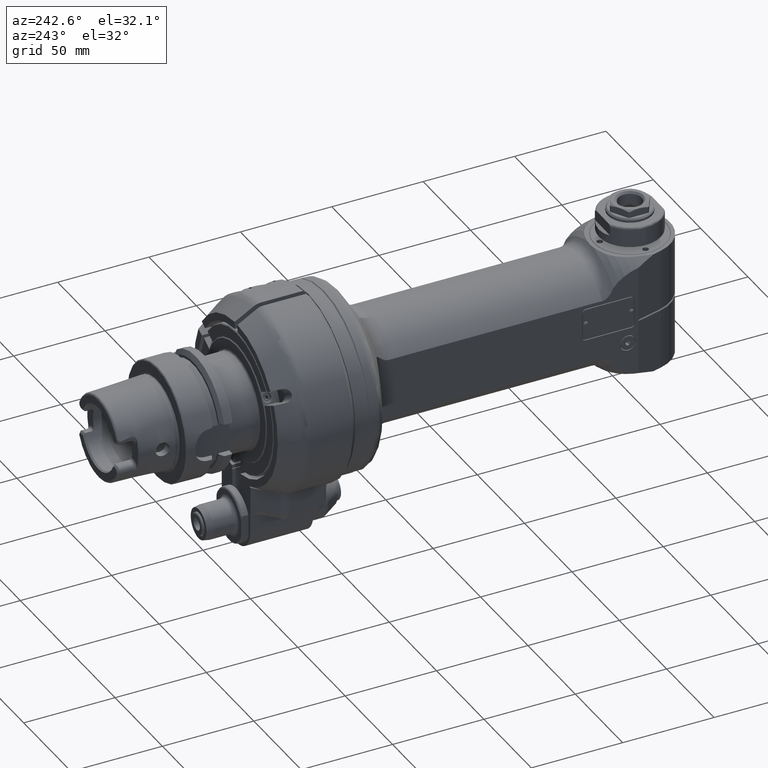
[diagram: clean part render]
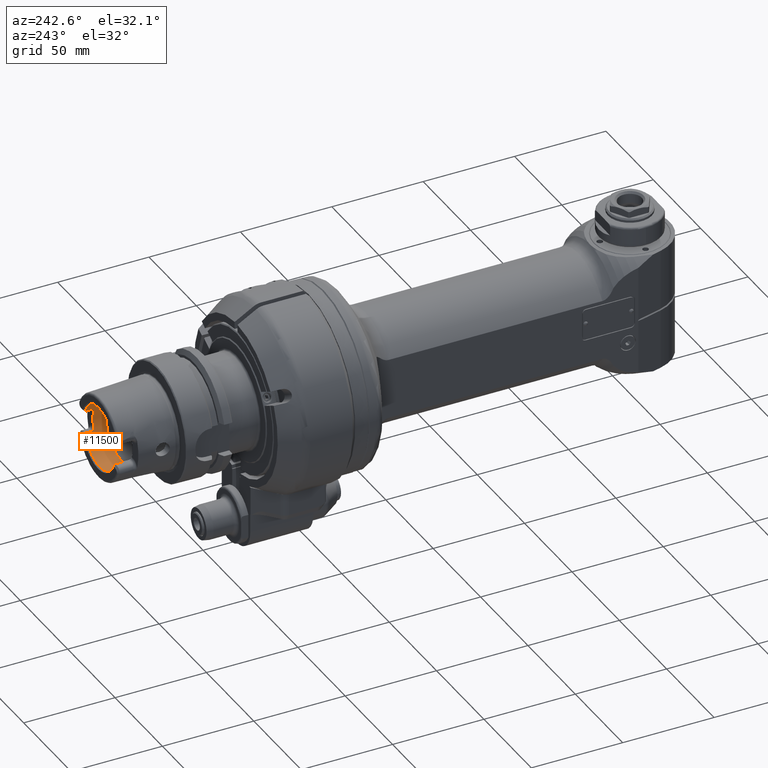
[diagram: same view with one face highlighted and labeled with its STEP entity id]
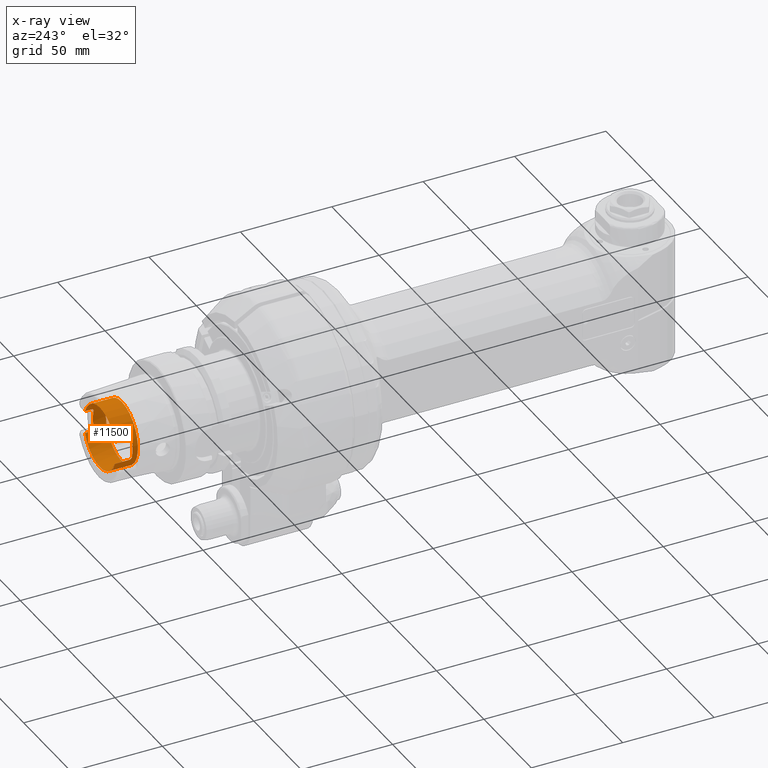
[diagram: x-ray of the same camera — body ghosted, the highlighted face saturated]
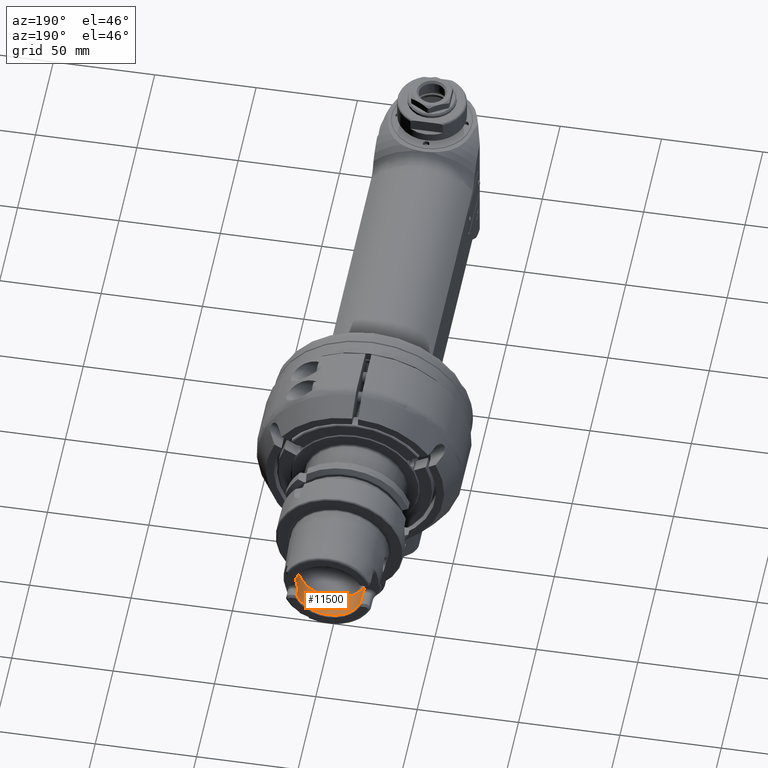
[diagram: same view with one face highlighted and labeled with its STEP entity id]
A machine part, auxiliary view. The second image highlights one B-rep face of the part: STEP entity #11500.
The next image is the same camera in x-ray: the body ghosted, the highlighted face saturated — about 0% of this face is hidden behind the body in this view.
A second angle (auxiliary view) of the same face is appended — the face is thin or edge-on in the first view.
In plain terms, the highlighted cylindrical surface (bore or boss wall) has radius 17 mm, axis along (0, 1, 0).
Its self-contained STEP definition (entity closure, byte-faithful):
#982=FACE_OUTER_BOUND('',#1634,.T.);
#1634=EDGE_LOOP('',(#8544,#8545,#8546,#8547,#8548,#8549,#8550,#8551,#8552,
#8553,#8554,#8555,#8556,#8557,#8558,#8559,#8560));
#2329=CIRCLE('',#12368,17.);
#2340=CIRCLE('',#12387,17.);
#2347=CIRCLE('',#12406,17.);
#2348=CIRCLE('',#12407,17.);
#2349=CIRCLE('',#12408,17.);
#2350=CIRCLE('',#12409,17.);
#2351=CIRCLE('',#12410,17.);
#2784=B_SPLINE_CURVE_WITH_KNOTS('',3,(#18374,#18375,#18376,#18377,#18378,
#18379,#18380,#18381,#18382,#18383),.UNSPECIFIED.,.F.,.F.,(4,2,2,2,4),(0.,
0.056497899521895,0.11299579904379,0.172665941565038,0.232336084086285),
 .UNSPECIFIED.);
#2785=B_SPLINE_CURVE_WITH_KNOTS('',3,(#18395,#18396,#18397,#18398,#18399,
#18400,#18401,#18402,#18403,#18404),.UNSPECIFIED.,.F.,.F.,(4,2,2,2,4),(-0.694241828658425,
-0.634571686137177,-0.57490154361593,-0.518403644094035,-0.46190574457214),
 .UNSPECIFIED.);
#2786=B_SPLINE_CURVE_WITH_KNOTS('',3,(#18406,#18407,#18408,#18409,#18410,
#18411,#18412,#18413,#18414,#18415),.UNSPECIFIED.,.F.,.F.,(4,2,2,2,4),(-0.46190574457214,
-0.405407845050245,-0.34890994552835,-0.289239803007102,-0.229569660485855),
 .UNSPECIFIED.);
#2787=B_SPLINE_CURVE_WITH_KNOTS('',3,(#18422,#18423,#18424,#18425,#18426,
#18427,#18428,#18429,#18430,#18431),.UNSPECIFIED.,.F.,.F.,(4,2,2,2,4),(-0.232336084086285,
-0.172665941565038,-0.11299579904379,-0.056497899521895,0.),
 .UNSPECIFIED.);
#3081=LINE('',#18371,#3979);
#3083=LINE('',#18390,#3981);
#3084=LINE('',#18394,#3982);
#3085=LINE('',#18417,#3983);
#3086=LINE('',#18421,#3984);
#3979=VECTOR('',#14094,7.5);
#3981=VECTOR('',#14104,17.);
#3982=VECTOR('',#14107,3.5);
#3983=VECTOR('',#14108,3.5);
#3984=VECTOR('',#14111,7.5);
#4977=VERTEX_POINT('',#18157);
#4978=VERTEX_POINT('',#18159);
#4994=VERTEX_POINT('',#18277);
#4995=VERTEX_POINT('',#18279);
#5008=VERTEX_POINT('',#18366);
#5009=VERTEX_POINT('',#18370);
#5010=VERTEX_POINT('',#18385);
#5011=VERTEX_POINT('',#18386);
#5012=VERTEX_POINT('',#18389);
#5013=VERTEX_POINT('',#18391);
#5014=VERTEX_POINT('',#18393);
#5015=VERTEX_POINT('',#18405);
#5016=VERTEX_POINT('',#18416);
#5017=VERTEX_POINT('',#18418);
#5018=VERTEX_POINT('',#18420);
#6343=EDGE_CURVE('',#4977,#4978,#2329,.T.);
#6367=EDGE_CURVE('',#4994,#4995,#2340,.T.);
#6388=EDGE_CURVE('',#5009,#5008,#3081,.T.);
#6390=EDGE_CURVE('',#5009,#4977,#2784,.T.);
#6391=EDGE_CURVE('',#5010,#5011,#2347,.T.);
#6392=EDGE_CURVE('',#5011,#5010,#2348,.T.);
#6393=EDGE_CURVE('',#5011,#5012,#3083,.T.);
#6394=EDGE_CURVE('',#5013,#5012,#2349,.T.);
#6395=EDGE_CURVE('',#5013,#5014,#3084,.T.);
#6396=EDGE_CURVE('',#4995,#5014,#2785,.T.);
#6397=EDGE_CURVE('',#5015,#4994,#2786,.T.);
#6398=EDGE_CURVE('',#5015,#5016,#3085,.T.);
#6399=EDGE_CURVE('',#5017,#5016,#2350,.T.);
#6400=EDGE_CURVE('',#5017,#5018,#3086,.T.);
#6401=EDGE_CURVE('',#4978,#5018,#2787,.T.);
#6402=EDGE_CURVE('',#5012,#5008,#2351,.T.);
#8544=ORIENTED_EDGE('',*,*,#6391,.F.);
#8545=ORIENTED_EDGE('',*,*,#6392,.F.);
#8546=ORIENTED_EDGE('',*,*,#6393,.T.);
#8547=ORIENTED_EDGE('',*,*,#6394,.F.);
#8548=ORIENTED_EDGE('',*,*,#6395,.T.);
#8549=ORIENTED_EDGE('',*,*,#6396,.F.);
#8550=ORIENTED_EDGE('',*,*,#6367,.F.);
#8551=ORIENTED_EDGE('',*,*,#6397,.F.);
#8552=ORIENTED_EDGE('',*,*,#6398,.T.);
#8553=ORIENTED_EDGE('',*,*,#6399,.F.);
#8554=ORIENTED_EDGE('',*,*,#6400,.T.);
#8555=ORIENTED_EDGE('',*,*,#6401,.F.);
#8556=ORIENTED_EDGE('',*,*,#6343,.F.);
#8557=ORIENTED_EDGE('',*,*,#6390,.F.);
#8558=ORIENTED_EDGE('',*,*,#6388,.T.);
#8559=ORIENTED_EDGE('',*,*,#6402,.F.);
#8560=ORIENTED_EDGE('',*,*,#6393,.F.);
#11214=CYLINDRICAL_SURFACE('',#12405,17.);
#11500=ADVANCED_FACE('',(#982),#11214,.F.);
#12368=AXIS2_PLACEMENT_3D('',#18160,#14011,#14012);
#12387=AXIS2_PLACEMENT_3D('',#18280,#14054,#14055);
#12405=AXIS2_PLACEMENT_3D('',#18384,#14098,#14099);
#12406=AXIS2_PLACEMENT_3D('',#18387,#14100,#14101);
#12407=AXIS2_PLACEMENT_3D('',#18388,#14102,#14103);
#12408=AXIS2_PLACEMENT_3D('',#18392,#14105,#14106);
#12409=AXIS2_PLACEMENT_3D('',#18419,#14109,#14110);
#12410=AXIS2_PLACEMENT_3D('',#18432,#14112,#14113);
#14011=DIRECTION('center_axis',(0.,0.,-1.));
#14012=DIRECTION('ref_axis',(0.280588235294097,-0.959828235787291,0.));
#14054=DIRECTION('center_axis',(0.,0.,-1.));
#14055=DIRECTION('ref_axis',(-0.280588235294097,0.959828235787291,0.));
#14094=DIRECTION('',(0.,0.,1.));
#14098=DIRECTION('center_axis',(0.,0.,1.));
#14099=DIRECTION('ref_axis',(-1.,0.,0.));
#14100=DIRECTION('center_axis',(0.,0.,1.));
#14101=DIRECTION('ref_axis',(-0.255555555555586,0.966794372151946,0.));
#14102=DIRECTION('center_axis',(0.,0.,1.));
#14103=DIRECTION('ref_axis',(-0.255555555555586,0.966794372151946,0.));
#14104=DIRECTION('',(0.,0.,1.));
#14105=DIRECTION('center_axis',(0.,0.,-1.));
#14106=DIRECTION('ref_axis',(0.368823529411804,0.929499437413611,0.));
#14107=DIRECTION('',(0.,0.,-1.));
#14108=DIRECTION('',(0.,-1.015061051086E-14,1.));
#14109=DIRECTION('center_axis',(0.,0.,-1.));
#14110=DIRECTION('ref_axis',(-0.368823529411804,-0.929499437413611,0.));
#14111=DIRECTION('',(0.,0.,-1.));
#14112=DIRECTION('center_axis',(0.,0.,-1.));
#14113=DIRECTION('ref_axis',(0.368823529411804,0.929499437413611,0.));
#18157=CARTESIAN_POINT('',(4.77,-16.31708000838,72.995));
#18159=CARTESIAN_POINT('',(-4.77,-16.31708000838,72.995));
#18160=CARTESIAN_POINT('Origin',(0.,0.,72.995));
#18277=CARTESIAN_POINT('',(-4.77,16.31708000838,76.995));
#18279=CARTESIAN_POINT('',(4.77,16.31708000838,76.995));
#18280=CARTESIAN_POINT('Origin',(0.,0.,76.995));
#18366=CARTESIAN_POINT('',(6.27,-15.80149043603,81.995));
#18370=CARTESIAN_POINT('',(6.27,-15.80149043603,74.495));
#18371=CARTESIAN_POINT('',(6.27,-15.80149043603,74.495));
#18374=CARTESIAN_POINT('Ctrl Pts',(6.27,-15.8014904360317,74.495));
#18375=CARTESIAN_POINT('Ctrl Pts',(6.27,-15.8014904360317,74.3066736682603));
#18376=CARTESIAN_POINT('Ctrl Pts',(6.23232125085234,-15.8165946761251,74.1069229195206));
#18377=CARTESIAN_POINT('Ctrl Pts',(6.082078486584,-15.8749745356799,73.7417155703026));
#18378=CARTESIAN_POINT('Ctrl Pts',(5.96960590306612,-15.9179857910505,73.5761791540138));
#18379=CARTESIAN_POINT('Ctrl Pts',(5.70721093092864,-16.01400454532,73.3080861154278));
#18380=CARTESIAN_POINT('Ctrl Pts',(5.53690543536203,-16.0742436586733,73.1900909803916));
#18381=CARTESIAN_POINT('Ctrl Pts',(5.16378617408596,-16.1979610859593,73.0335404635846));
#18382=CARTESIAN_POINT('Ctrl Pts',(4.96091029208457,-16.2612708750845,72.995));
#18383=CARTESIAN_POINT('Ctrl Pts',(4.77,-16.3170800083839,72.995));
#18384=CARTESIAN_POINT('Origin',(0.,0.,61.995));
#18385=CARTESIAN_POINT('',(-4.34444444444562,16.4355043265856,69.9910254037845));
#18386=CARTESIAN_POINT('',(17.,2.0818995585505E-15,69.99102540378));
#18387=CARTESIAN_POINT('Origin',(0.,0.,69.99102540378));
#18388=CARTESIAN_POINT('Origin',(0.,0.,69.99102540378));
#18389=CARTESIAN_POINT('',(17.,2.0818995585505E-15,81.995));
#18390=CARTESIAN_POINT('',(17.,2.0818995585505E-15,61.995));
#18391=CARTESIAN_POINT('',(6.27,15.80149043603,81.995));
#18392=CARTESIAN_POINT('Origin',(0.,0.,81.995));
#18393=CARTESIAN_POINT('',(6.27,15.80149043603,78.495));
#18394=CARTESIAN_POINT('',(6.27,15.80149043603,81.995));
#18395=CARTESIAN_POINT('Ctrl Pts',(4.77,16.3170800083839,76.995));
#18396=CARTESIAN_POINT('Ctrl Pts',(4.96091029208457,16.2612708750845,76.9950000000001));
#18397=CARTESIAN_POINT('Ctrl Pts',(5.16378617408597,16.1979610859593,77.0335404635846));
#18398=CARTESIAN_POINT('Ctrl Pts',(5.53690543536204,16.0742436586733,77.1900909803916));
#18399=CARTESIAN_POINT('Ctrl Pts',(5.70721093092864,16.01400454532,77.3080861154278));
#18400=CARTESIAN_POINT('Ctrl Pts',(5.96960590306612,15.9179857910505,77.5761791540138));
#18401=CARTESIAN_POINT('Ctrl Pts',(6.082078486584,15.8749745356799,77.7417155703026));
#18402=CARTESIAN_POINT('Ctrl Pts',(6.23232125085235,15.8165946761251,78.1069229195206));
#18403=CARTESIAN_POINT('Ctrl Pts',(6.27,15.8014904360317,78.3066736682603));
#18404=CARTESIAN_POINT('Ctrl Pts',(6.27,15.8014904360317,78.495));
#18405=CARTESIAN_POINT('',(-6.27,15.80149043603,78.495));
#18406=CARTESIAN_POINT('Ctrl Pts',(-6.27,15.8014904360317,78.495));
#18407=CARTESIAN_POINT('Ctrl Pts',(-6.27,15.8014904360317,78.3066736682603));
#18408=CARTESIAN_POINT('Ctrl Pts',(-6.23232125085234,15.8165946761251,78.1069229195206));
#18409=CARTESIAN_POINT('Ctrl Pts',(-6.082078486584,15.8749745356799,77.7417155703026));
#18410=CARTESIAN_POINT('Ctrl Pts',(-5.96960590306612,15.9179857910505,77.5761791540138));
#18411=CARTESIAN_POINT('Ctrl Pts',(-5.70721093092864,16.01400454532,77.3080861154278));
#18412=CARTESIAN_POINT('Ctrl Pts',(-5.53690543536203,16.0742436586733,77.1900909803916));
#18413=CARTESIAN_POINT('Ctrl Pts',(-5.16378617408596,16.1979610859593,77.0335404635846));
#18414=CARTESIAN_POINT('Ctrl Pts',(-4.96091029208457,16.2612708750845,76.995));
#18415=CARTESIAN_POINT('Ctrl Pts',(-4.77,16.3170800083839,76.995));
#18416=CARTESIAN_POINT('',(-6.27,15.80149043603,81.995));
#18417=CARTESIAN_POINT('',(-6.27,15.80149043603,78.495));
#18418=CARTESIAN_POINT('',(-6.27,-15.80149043603,81.995));
#18419=CARTESIAN_POINT('Origin',(0.,0.,81.995));
#18420=CARTESIAN_POINT('',(-6.27,-15.80149043603,74.495));
#18421=CARTESIAN_POINT('',(-6.27,-15.80149043603,81.995));
#18422=CARTESIAN_POINT('Ctrl Pts',(-4.77,-16.3170800083839,72.995));
#18423=CARTESIAN_POINT('Ctrl Pts',(-4.96091029208457,-16.2612708750845,
72.9950000000001));
#18424=CARTESIAN_POINT('Ctrl Pts',(-5.16378617408596,-16.1979610859593,
73.0335404635846));
#18425=CARTESIAN_POINT('Ctrl Pts',(-5.53690543536203,-16.0742436586733,
73.1900909803916));
#18426=CARTESIAN_POINT('Ctrl Pts',(-5.70721093092864,-16.01400454532,73.3080861154278));
#18427=CARTESIAN_POINT('Ctrl Pts',(-5.96960590306612,-15.9179857910505,
73.5761791540138));
#18428=CARTESIAN_POINT('Ctrl Pts',(-6.082078486584,-15.8749745356799,73.7417155703026));
#18429=CARTESIAN_POINT('Ctrl Pts',(-6.23232125085234,-15.8165946761251,
74.1069229195206));
#18430=CARTESIAN_POINT('Ctrl Pts',(-6.27,-15.8014904360317,74.3066736682603));
#18431=CARTESIAN_POINT('Ctrl Pts',(-6.27,-15.8014904360317,74.495));
#18432=CARTESIAN_POINT('Origin',(0.,0.,81.995));